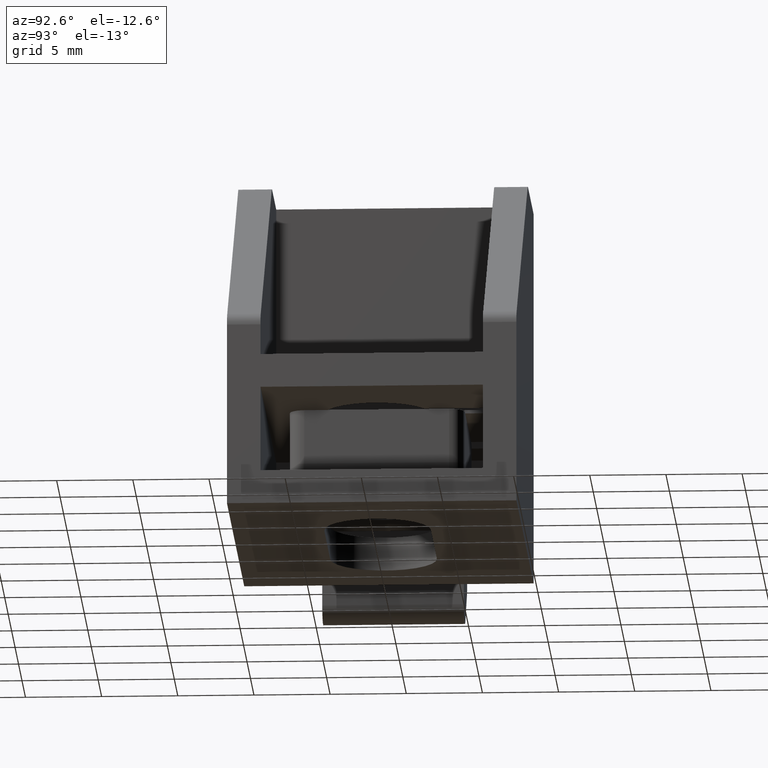
[diagram: clean part render]
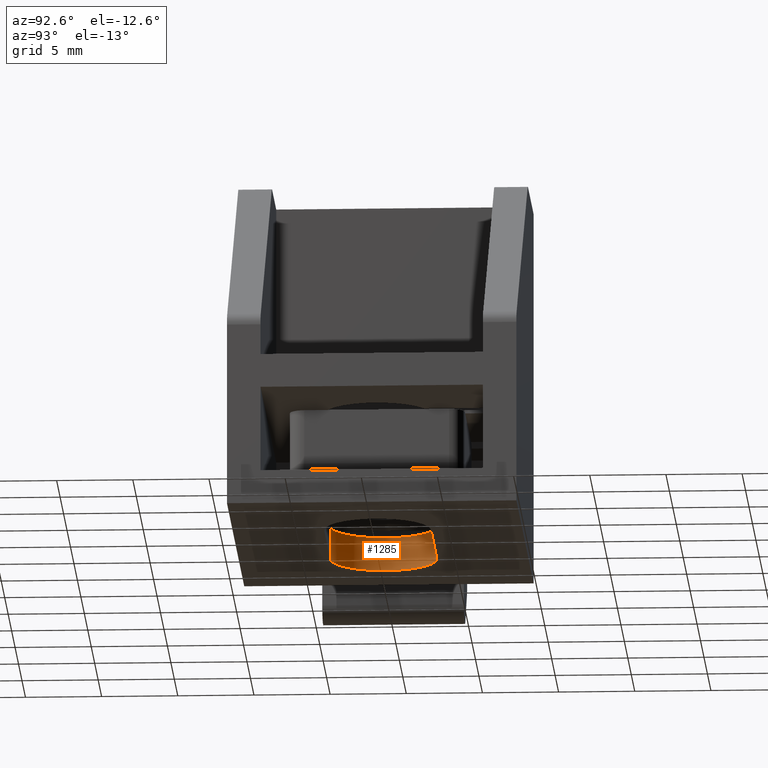
[diagram: same view with one face highlighted and labeled with its STEP entity id]
A machine part, auxiliary view. The second image highlights one B-rep face of the part: STEP entity #1285.
In plain terms, the highlighted cylindrical surface (partial cylindrical patch) has radius 3.5 mm, axis along (0, 0, 1).
Its self-contained STEP definition (entity closure, byte-faithful):
#122=LINE('',#1978,#266);
#123=LINE('',#1979,#267);
#266=VECTOR('',#1589,2.2);
#267=VECTOR('',#1590,2.2);
#378=FACE_OUTER_BOUND('',#447,.T.);
#447=EDGE_LOOP('',(#983,#984,#985,#986,#987,#988));
#508=CIRCLE('',#1356,3.5);
#509=CIRCLE('',#1357,3.5);
#515=CIRCLE('',#1369,3.5);
#518=CIRCLE('',#1373,3.5);
#572=VERTEX_POINT('',#1891);
#573=VERTEX_POINT('',#1893);
#574=VERTEX_POINT('',#1897);
#575=VERTEX_POINT('',#1899);
#604=VERTEX_POINT('',#1972);
#605=VERTEX_POINT('',#1974);
#710=EDGE_CURVE('',#574,#573,#508,.T.);
#711=EDGE_CURVE('',#572,#575,#509,.T.);
#741=EDGE_CURVE('',#573,#572,#515,.T.);
#749=EDGE_CURVE('',#604,#605,#518,.T.);
#751=EDGE_CURVE('',#604,#575,#122,.T.);
#752=EDGE_CURVE('',#605,#574,#123,.T.);
#983=ORIENTED_EDGE('',*,*,#749,.F.);
#984=ORIENTED_EDGE('',*,*,#751,.T.);
#985=ORIENTED_EDGE('',*,*,#711,.F.);
#986=ORIENTED_EDGE('',*,*,#741,.F.);
#987=ORIENTED_EDGE('',*,*,#710,.F.);
#988=ORIENTED_EDGE('',*,*,#752,.F.);
#1252=CYLINDRICAL_SURFACE('',#1374,3.5);
#1285=ADVANCED_FACE('',(#378),#1252,.F.);
#1356=AXIS2_PLACEMENT_3D('',#1898,#1521,#1522);
#1357=AXIS2_PLACEMENT_3D('',#1900,#1523,#1524);
#1369=AXIS2_PLACEMENT_3D('',#1958,#1571,#1572);
#1373=AXIS2_PLACEMENT_3D('',#1975,#1584,#1585);
#1374=AXIS2_PLACEMENT_3D('',#1977,#1587,#1588);
#1521=DIRECTION('center_axis',(-1.77635683940025E-16,0.,-1.));
#1522=DIRECTION('ref_axis',(0.,-1.,0.));
#1523=DIRECTION('center_axis',(-1.77635683940025E-16,0.,-1.));
#1524=DIRECTION('ref_axis',(0.,-1.,0.));
#1571=DIRECTION('center_axis',(-1.77635683940025E-16,0.,-1.));
#1572=DIRECTION('ref_axis',(0.,-1.,0.));
#1584=DIRECTION('center_axis',(1.77635683940025E-16,0.,1.));
#1585=DIRECTION('ref_axis',(0.,-1.,0.));
#1587=DIRECTION('center_axis',(1.79068229778251E-16,0.,1.));
#1588=DIRECTION('ref_axis',(0.,-1.,0.));
#1589=DIRECTION('',(1.79068229778251E-16,0.,1.));
#1590=DIRECTION('',(1.79068229778251E-16,0.,1.));
#1891=CARTESIAN_POINT('',(6.35,3.1855140872393,2.2));
#1893=CARTESIAN_POINT('',(6.35,-3.1855140872393,2.2));
#1897=CARTESIAN_POINT('',(7.8,-3.5,2.2));
#1898=CARTESIAN_POINT('Origin',(7.8,0.,2.2));
#1899=CARTESIAN_POINT('',(7.8,3.5,2.2));
#1900=CARTESIAN_POINT('Origin',(7.8,0.,2.2));
#1958=CARTESIAN_POINT('Origin',(7.8,0.,2.2));
#1972=CARTESIAN_POINT('',(7.8,3.5,-1.38555833473219E-15));
#1974=CARTESIAN_POINT('',(7.8,-3.5,-1.3855583347322E-15));
#1975=CARTESIAN_POINT('Origin',(7.8,0.,-1.36091854631471E-15));
#1977=CARTESIAN_POINT('Origin',(7.8,0.,-1.3855583347322E-15));
#1978=CARTESIAN_POINT('',(7.8,3.5,-1.38555833473219E-15));
#1979=CARTESIAN_POINT('',(7.8,-3.5,-1.3855583347322E-15));